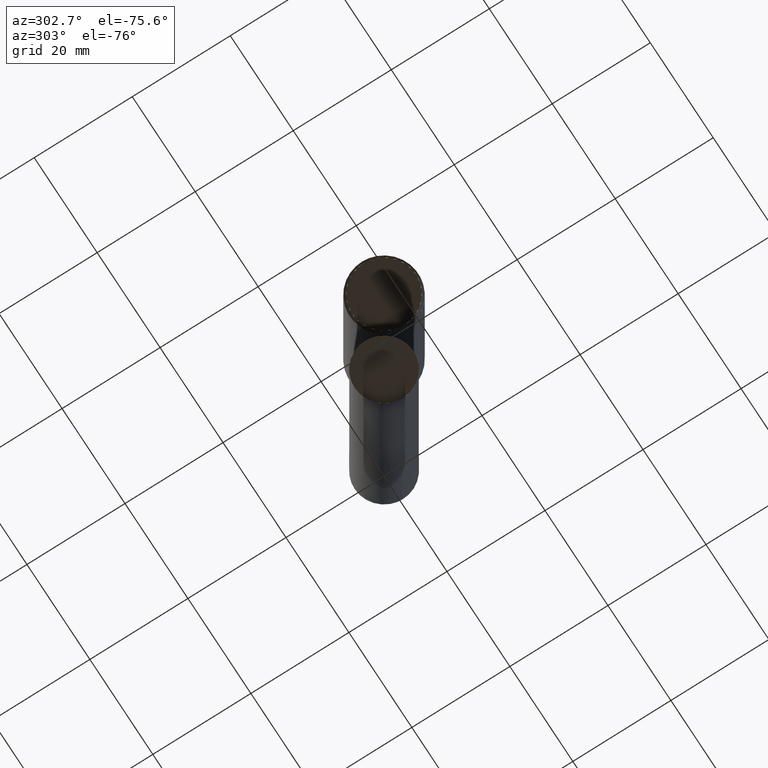
[diagram: clean part render]
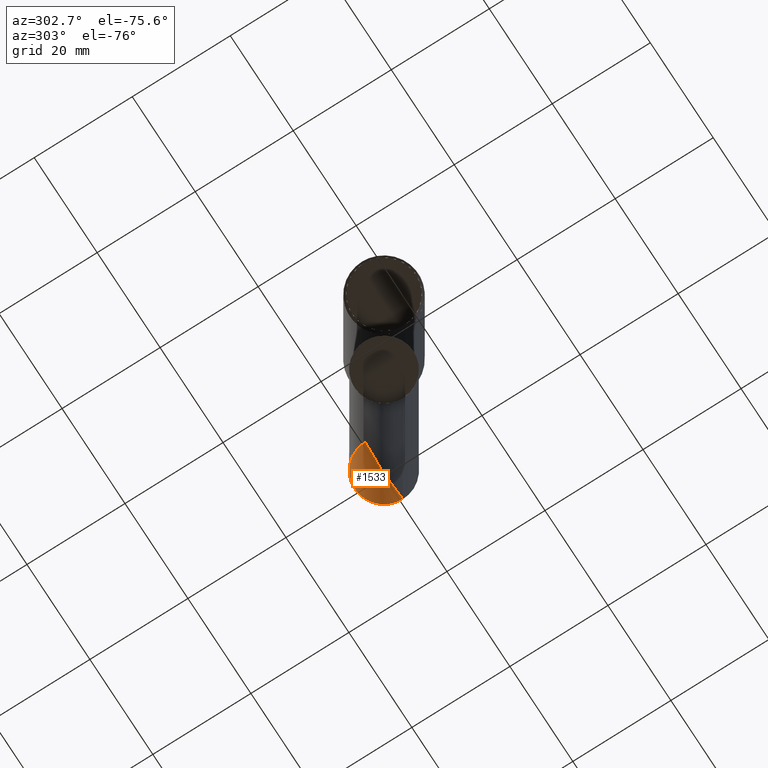
[diagram: same view with one face highlighted and labeled with its STEP entity id]
A machine part, auxiliary view. The second image highlights one B-rep face of the part: STEP entity #1533.
In plain terms, the highlighted face is a freeform B-spline surface patch.
Its self-contained STEP definition (entity closure, byte-faithful):
#1454=CARTESIAN_POINT('',(0.0,0.0,-79.0));
#1455=CARTESIAN_POINT('',(6.0,0.0,-76.816178594403));
#1456=CARTESIAN_POINT('',(6.0,6.0,-76.816178594403));
#1457=CARTESIAN_POINT('',(0.0,6.0,-76.816178594403));
#1458=CARTESIAN_POINT('',(-6.0,6.0,-76.816178594403));
#1459=CARTESIAN_POINT('',(-6.0,0.0,-76.816178594403));
#1518=(
BOUNDED_SURFACE()
B_SPLINE_SURFACE(1,2,(
(#1454,#1454,#1454,#1454,#1454),
(#1455,#1456,#1457,#1458,#1459)
), .UNSPECIFIED.,.F.,.F.,.F.)
B_SPLINE_SURFACE_WITH_KNOTS((2,2),(3,2,3),(
0.0,1.0),(
0.0,0.5,1.0), .UNSPECIFIED.)
GEOMETRIC_REPRESENTATION_ITEM()
RATIONAL_B_SPLINE_SURFACE(((1.0,0.707106781187,1.0,0.707106781187,1.0),
(1.0,0.707106781187,1.0,0.707106781187,1.0)
))
REPRESENTATION_ITEM('')
SURFACE()
);
#1519=(
BOUNDED_CURVE()
B_SPLINE_CURVE(1,(#1459,#1454),.UNSPECIFIED.,.F.,.F.)
B_SPLINE_CURVE_WITH_KNOTS((2,2),
(0.0,1.0),.UNSPECIFIED.)
CURVE()
GEOMETRIC_REPRESENTATION_ITEM()
RATIONAL_B_SPLINE_CURVE((1.0,1.0))
REPRESENTATION_ITEM('')
);
#1520=(
BOUNDED_CURVE()
B_SPLINE_CURVE(1,(#1454,#1455),.UNSPECIFIED.,.F.,.F.)
B_SPLINE_CURVE_WITH_KNOTS((2,2),
(0.0,1.0),.UNSPECIFIED.)
CURVE()
GEOMETRIC_REPRESENTATION_ITEM()
RATIONAL_B_SPLINE_CURVE((1.0,1.0))
REPRESENTATION_ITEM('')
);
#1521=(
BOUNDED_CURVE()
B_SPLINE_CURVE(2,(#1455,#1456,#1457,#1458,#1459),.UNSPECIFIED.,.F.,.F.)
B_SPLINE_CURVE_WITH_KNOTS((3,2,3),
(0.0,0.5,1.0),.UNSPECIFIED.)
CURVE()
GEOMETRIC_REPRESENTATION_ITEM()
RATIONAL_B_SPLINE_CURVE((1.0,0.707106781187,1.0,0.707106781187,1.0))
REPRESENTATION_ITEM('')
);
#1522=VERTEX_POINT('',#1454);
#1523=VERTEX_POINT('',#1455);
#1524=VERTEX_POINT('',#1459);
#1525=EDGE_CURVE('',#1524,#1522,#1519,.T.);
#1526=EDGE_CURVE('',#1522,#1523,#1520,.T.);
#1527=EDGE_CURVE('',#1523,#1524,#1521,.T.);
#1528=ORIENTED_EDGE('',*,*,#1525,.T.);
#1529=ORIENTED_EDGE('',*,*,#1526,.T.);
#1530=ORIENTED_EDGE('',*,*,#1527,.T.);
#1531=EDGE_LOOP('',(#1528,#1529,#1530));
#1532=FACE_OUTER_BOUND('',#1531,.T.);
#1533=ADVANCED_FACE('',(#1532),#1518,.T.);